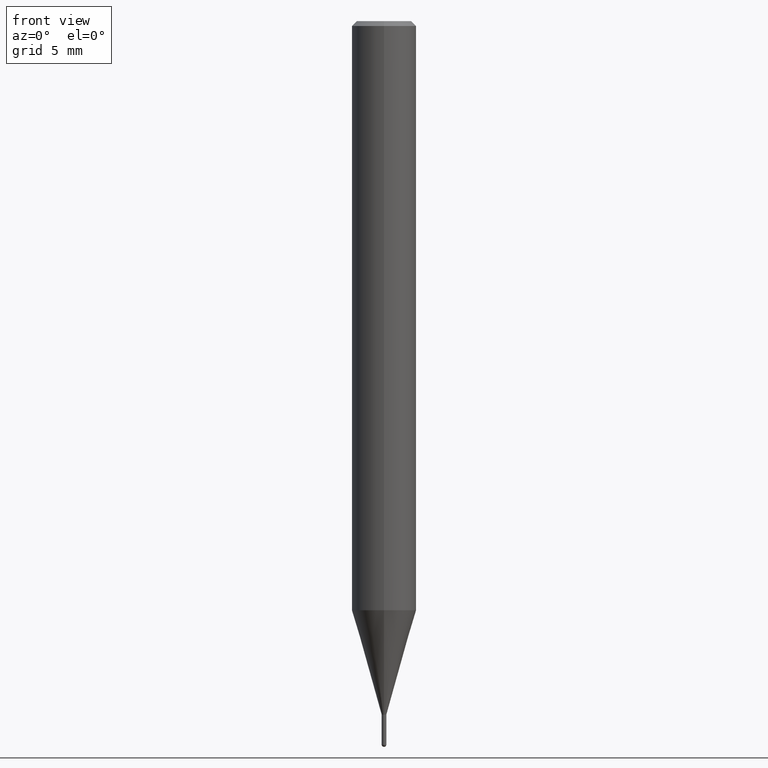
[diagram: clean part render]
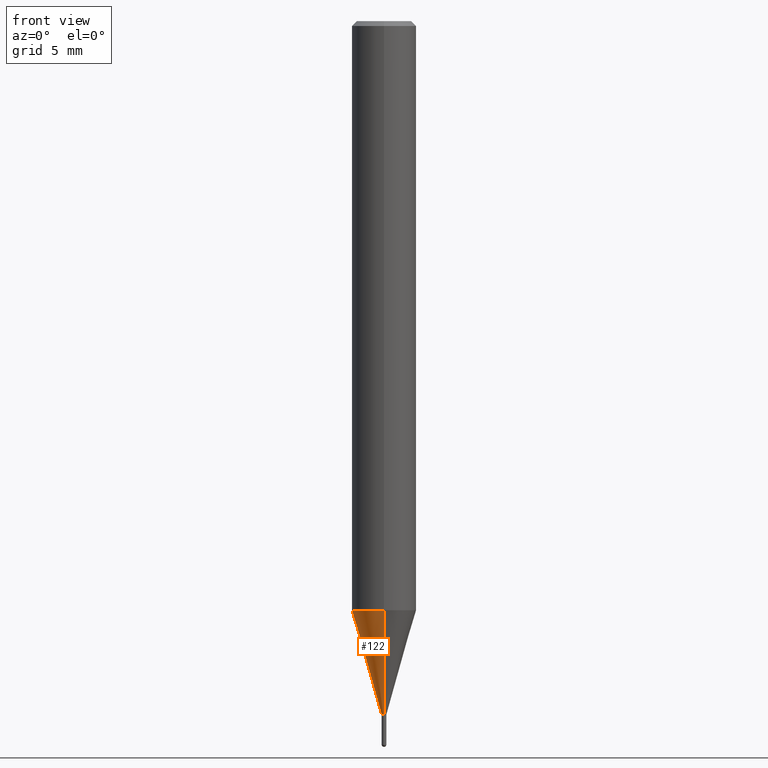
[diagram: same view with one face highlighted and labeled with its STEP entity id]
A machine part, front view. The second image highlights one B-rep face of the part: STEP entity #122.
In plain terms, the highlighted conical surface has half-angle 16 deg.
Its self-contained STEP definition (entity closure, byte-faithful):
#94=VERTEX_POINT('',#235);
#122=ADVANCED_FACE('',(#268),#269,.T.);
#136=EDGE_CURVE('',#162,#94,#284,.T.);
#158=EDGE_CURVE('',#162,#160,#307,.T.);
#160=VERTEX_POINT('',#309);
#162=VERTEX_POINT('',#311);
#166=EDGE_CURVE('',#172,#160,#315,.T.);
#172=VERTEX_POINT('',#321);
#208=EDGE_CURVE('',#94,#172,#364,.T.);
#235=CARTESIAN_POINT('',(2.44915147732706E-016,-1.99995,-36.531));
#268=FACE_OUTER_BOUND('',#427,.T.);
#269=CONICAL_SURFACE('',#428,1.07245,0.279258979430112);
#284=LINE('',#446,#447);
#307=CIRCLE('',#480,0.14495);
#309=CARTESIAN_POINT('',(0.0,0.14495,-43.0));
#311=CARTESIAN_POINT('',(1.77506690986554E-017,-0.14495,-43.0));
#315=LINE('',#488,#489);
#321=CARTESIAN_POINT('',(0.0,1.99995,-36.531));
#364=CIRCLE('',#547,1.99995);
#427=EDGE_LOOP('',(#600,#601,#602,#603));
#428=AXIS2_PLACEMENT_3D('',#604,#605,#606);
#446=CARTESIAN_POINT('',(1.31332908415681E-016,-1.07245,-39.7655));
#447=VECTOR('',#625,1.0);
#480=AXIS2_PLACEMENT_3D('',#644,#645,#646);
#488=CARTESIAN_POINT('',(-1.31332908415681E-016,1.07245,-39.7655));
#489=VECTOR('',#648,1.0);
#547=AXIS2_PLACEMENT_3D('',#722,#723,#724);
#600=ORIENTED_EDGE('',*,*,#166,.T.);
#601=ORIENTED_EDGE('',*,*,#158,.F.);
#602=ORIENTED_EDGE('',*,*,#136,.T.);
#603=ORIENTED_EDGE('',*,*,#208,.T.);
#604=CARTESIAN_POINT('',(0.0,0.0,-39.7655));
#605=DIRECTION('',(-0.0,-0.0,1.0));
#606=DIRECTION('',(0.0,1.0,0.0));
#625=DIRECTION('',(3.37554672384358E-017,-0.275643410905672,0.961259959648943));
#644=CARTESIAN_POINT('',(0.0,0.0,-43.0));
#645=DIRECTION('',(0.0,0.0,-1.0));
#646=DIRECTION('',(0.0,1.0,0.0));
#648=DIRECTION('',(3.37554672384358E-017,-0.275643410905672,-0.961259959648943));
#722=CARTESIAN_POINT('',(0.0,0.0,-36.531));
#723=DIRECTION('',(0.0,0.0,-1.0));
#724=DIRECTION('',(0.0,1.0,0.0));